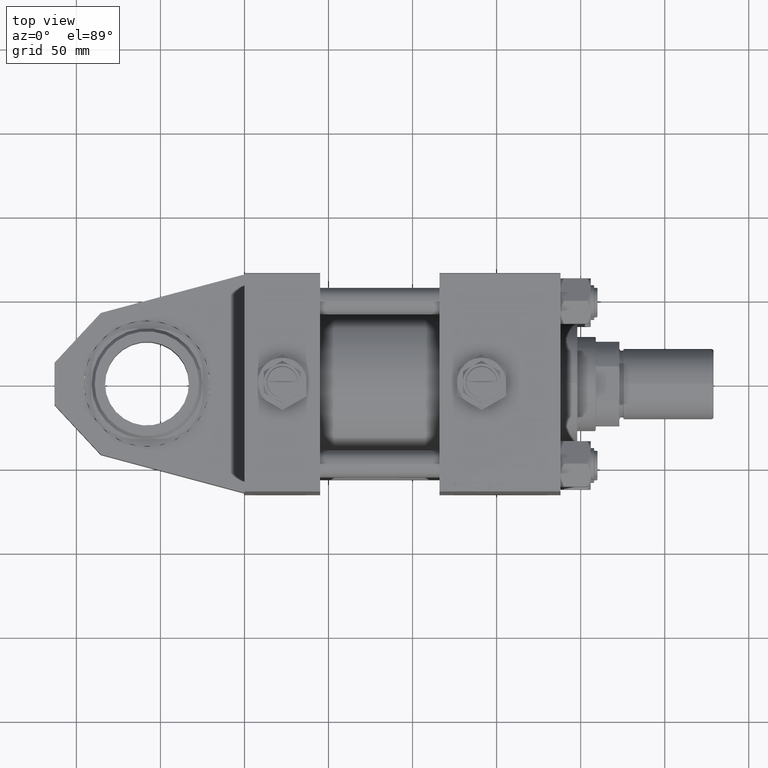
[diagram: clean part render]
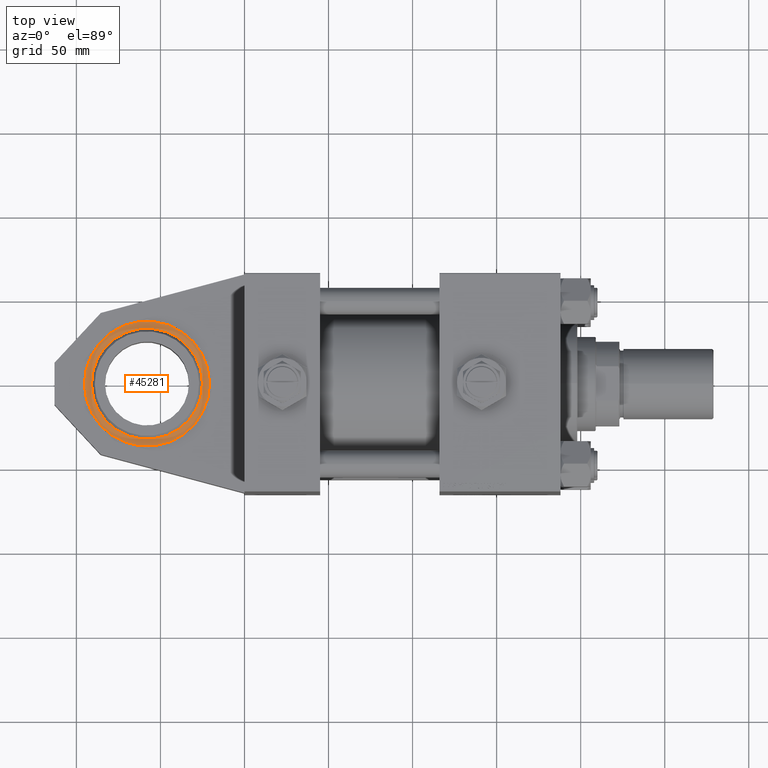
[diagram: same view with one face highlighted and labeled with its STEP entity id]
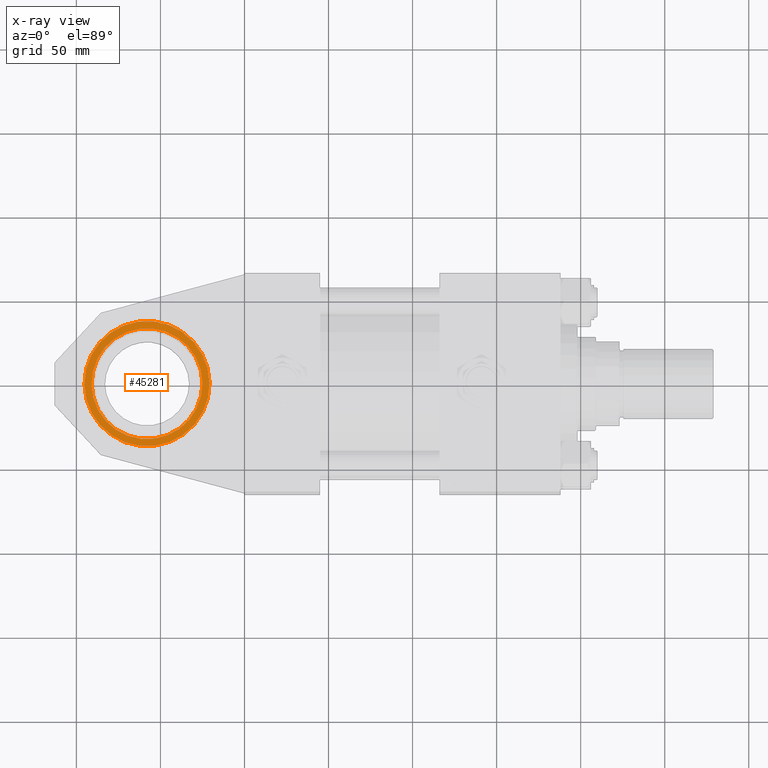
[diagram: x-ray of the same camera — body ghosted, the highlighted face saturated]
A machine part, top view. The second image highlights one B-rep face of the part: STEP entity #45281.
The next image is the same camera in x-ray: the body ghosted, the highlighted face saturated — about 0% of this face is hidden behind the body in this view.
In plain terms, the highlighted planar face has unit normal (0, -0, -1).
Its self-contained STEP definition (entity closure, byte-faithful):
#177 = ORIENTED_EDGE ( 'NONE', *, *, #22524, .F. ) ;
#1009 = CIRCLE ( 'NONE', #32811, 37.19999999999999574 ) ;
#1121 = CARTESIAN_POINT ( 'NONE',  ( 33.00000000000000000, 0.000000000000000000, 13.99999999999999467 ) ) ;
#2952 = FACE_OUTER_BOUND ( 'NONE', #51129, .T. ) ;
#4702 = EDGE_CURVE ( 'NONE', #39178, #22297, #13540, .T. ) ;
#6248 = DIRECTION ( 'NONE',  ( -0.000000000000000000, -0.000000000000000000, 1.000000000000000000 ) ) ;
#7789 = DIRECTION ( 'NONE',  ( -1.000000000000000000, 0.000000000000000000, -0.000000000000000000 ) ) ;
#10115 = DIRECTION ( 'NONE',  ( -1.000000000000000000, 0.000000000000000000, 0.000000000000000000 ) ) ;
#13540 = CIRCLE ( 'NONE', #48776, 33.00000000000000000 ) ;
#13850 = EDGE_CURVE ( 'NONE', #19874, #23440, #1009, .T. ) ;
#14814 = ORIENTED_EDGE ( 'NONE', *, *, #36542, .T. ) ;
#15790 = AXIS2_PLACEMENT_3D ( 'NONE', #22567, #51860, #38986 ) ;
#16118 = CARTESIAN_POINT ( 'NONE',  ( 0.000000000000000000, 33.00000000000000000, 13.99999999999999467 ) ) ;
#16694 = CARTESIAN_POINT ( 'NONE',  ( 37.19999999999999574, 4.574055794815363937E-15, 13.99999999999999467 ) ) ;
#17968 = EDGE_LOOP ( 'NONE', ( #177, #25176 ) ) ;
#19522 = AXIS2_PLACEMENT_3D ( 'NONE', #16118, #48149, #7789 ) ;
#19874 = VERTEX_POINT ( 'NONE', #27498 ) ;
#22297 = VERTEX_POINT ( 'NONE', #1121 ) ;
#22524 = EDGE_CURVE ( 'NONE', #22297, #39178, #38998, .T. ) ;
#22567 = CARTESIAN_POINT ( 'NONE',  ( 0.000000000000000000, 0.000000000000000000, 13.99999999999999467 ) ) ;
#22654 = DIRECTION ( 'NONE',  ( 1.000000000000000000, 0.000000000000000000, 0.000000000000000000 ) ) ;
#23440 = VERTEX_POINT ( 'NONE', #16694 ) ;
#25176 = ORIENTED_EDGE ( 'NONE', *, *, #4702, .F. ) ;
#26696 = CARTESIAN_POINT ( 'NONE',  ( 0.000000000000000000, 0.000000000000000000, 13.99999999999999467 ) ) ;
#27440 = PLANE ( 'NONE',  #19522 ) ;
#27498 = CARTESIAN_POINT ( 'NONE',  ( -37.19999999999999574, 0.000000000000000000, 13.99999999999999467 ) ) ;
#27703 = DIRECTION ( 'NONE',  ( -0.000000000000000000, -0.000000000000000000, 1.000000000000000000 ) ) ;
#32811 = AXIS2_PLACEMENT_3D ( 'NONE', #34844, #34582, #10115 ) ;
#34582 = DIRECTION ( 'NONE',  ( -0.000000000000000000, -0.000000000000000000, 1.000000000000000000 ) ) ;
#34844 = CARTESIAN_POINT ( 'NONE',  ( 0.000000000000000000, 0.000000000000000000, 13.99999999999999467 ) ) ;
#36542 = EDGE_CURVE ( 'NONE', #23440, #19874, #45988, .T. ) ;
#38986 = DIRECTION ( 'NONE',  ( 1.000000000000000000, 0.000000000000000000, 0.000000000000000000 ) ) ;
#38998 = CIRCLE ( 'NONE', #15790, 33.00000000000000000 ) ;
#39178 = VERTEX_POINT ( 'NONE', #52572 ) ;
#40081 = DIRECTION ( 'NONE',  ( -1.000000000000000000, 0.000000000000000000, 0.000000000000000000 ) ) ;
#40340 = CARTESIAN_POINT ( 'NONE',  ( 0.000000000000000000, 0.000000000000000000, 13.99999999999999467 ) ) ;
#45281 = ADVANCED_FACE ( 'NONE', ( #2952, #48410 ), #27440, .F. ) ;
#45988 = CIRCLE ( 'NONE', #51113, 37.19999999999999574 ) ;
#48149 = DIRECTION ( 'NONE',  ( 0.000000000000000000, 0.000000000000000000, -1.000000000000000000 ) ) ;
#48410 = FACE_BOUND ( 'NONE', #17968, .T. ) ;
#48776 = AXIS2_PLACEMENT_3D ( 'NONE', #26696, #6248, #22654 ) ;
#49021 = ORIENTED_EDGE ( 'NONE', *, *, #13850, .T. ) ;
#51113 = AXIS2_PLACEMENT_3D ( 'NONE', #40340, #27703, #40081 ) ;
#51129 = EDGE_LOOP ( 'NONE', ( #49021, #14814 ) ) ;
#51860 = DIRECTION ( 'NONE',  ( -0.000000000000000000, -0.000000000000000000, 1.000000000000000000 ) ) ;
#52572 = CARTESIAN_POINT ( 'NONE',  ( -33.00000000000000000, 4.041334437186266200E-15, 13.99999999999999467 ) ) ;